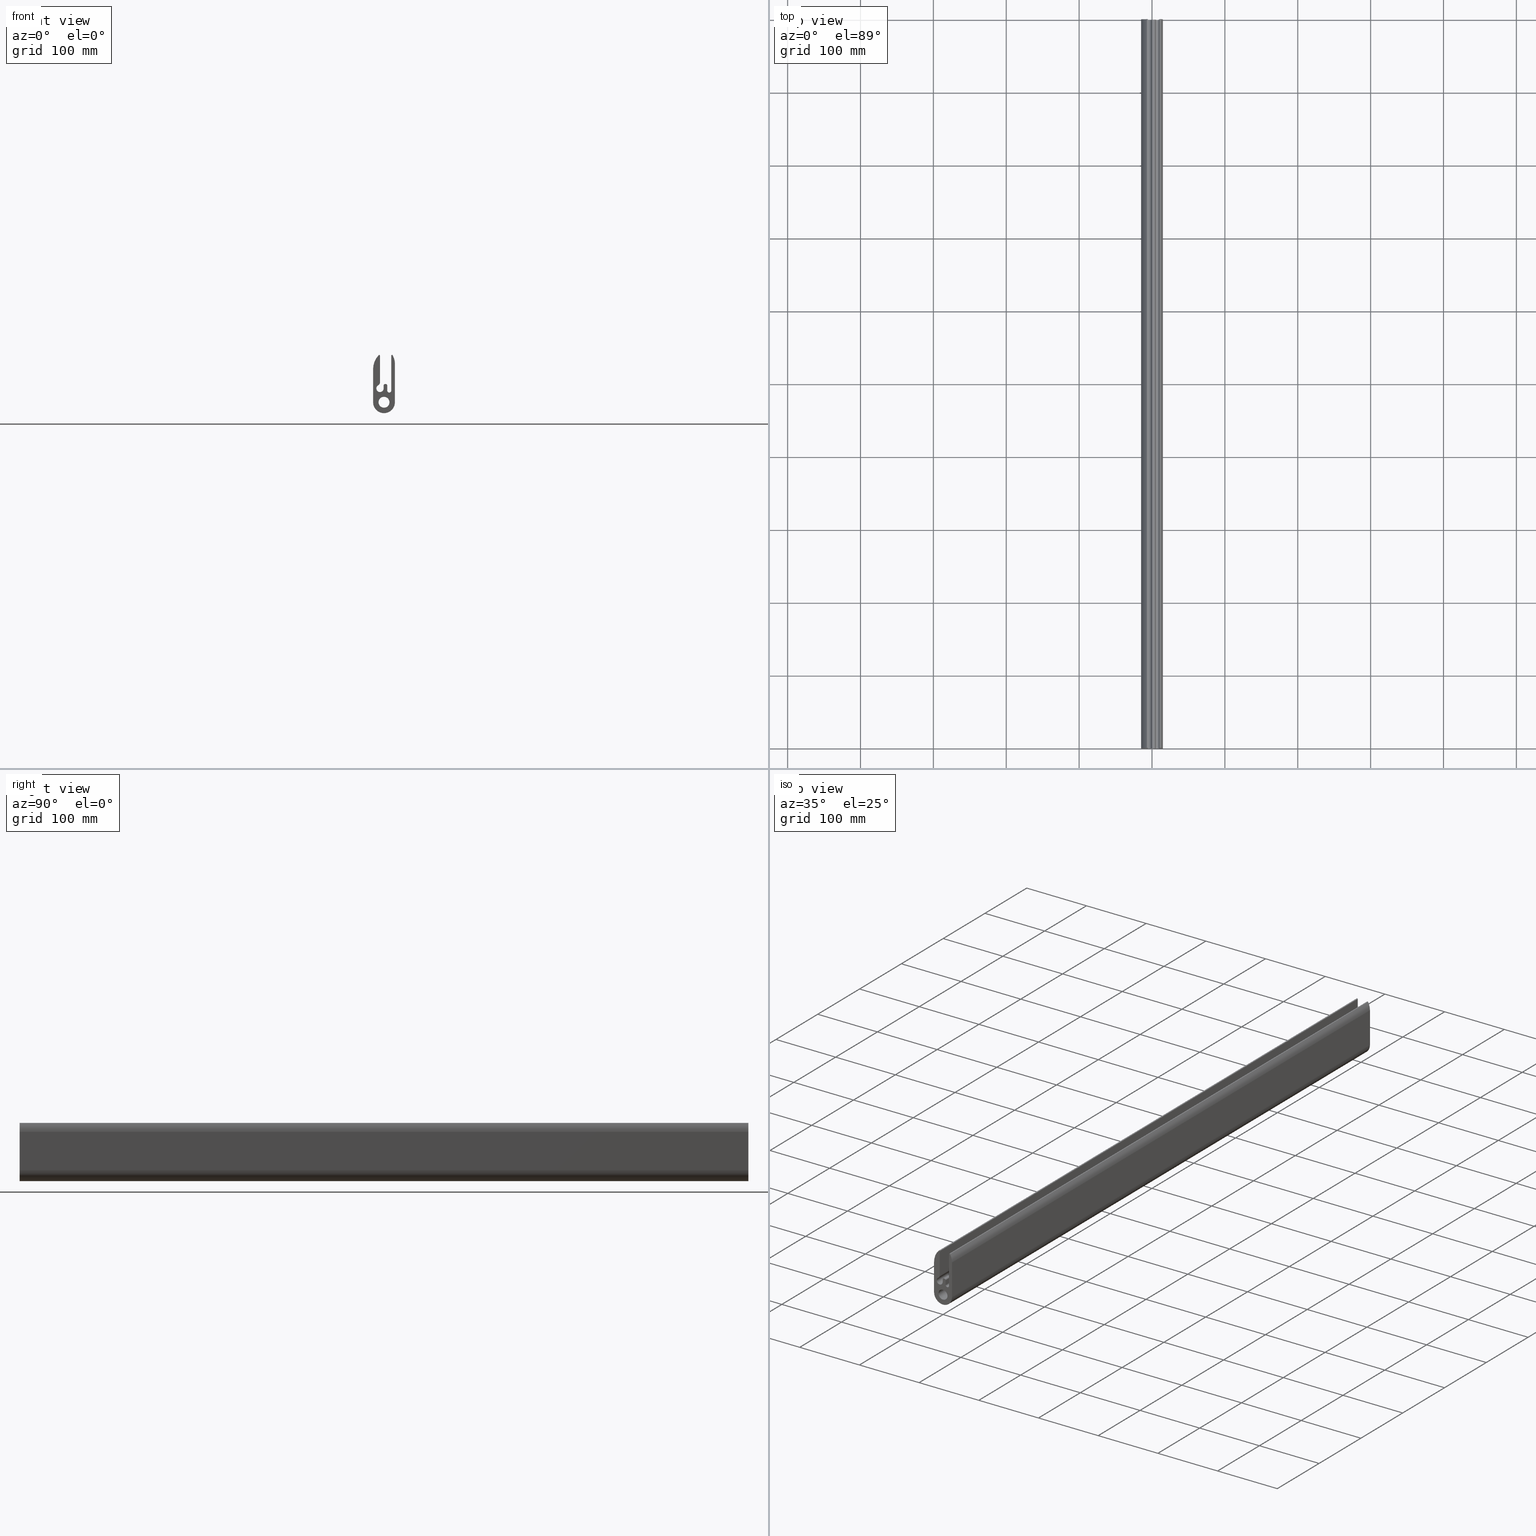
[diagram: canonical four-view strip — front | top / right | iso, engineering-drawing reading convention]
A machine part, canonical four-view strip (front | top / right | iso — engineering-drawing reading convention). The complete STEP part file that produces these views, byte-faithful:
ISO-10303-21;
HEADER;
/* Generated by software containing ST-Developer
 * from STEP Tools, Inc. (www.steptools.com) 
 */

FILE_DESCRIPTION(
/* description */ ('Translator using VaultInventorServer'),
/* implementation_level */ '2;1');

FILE_NAME(
/* name */ 
'C:\\DIERRE19\\Designs\\DIERRE\\PR\\CR\\0000000_0005000\\BPRCR0000029_
A.stp',
/* time_stamp */ '2021-02-10T14:11:45+01:00',
/* author */ ('Tecnico5'),
/* organization */ (''),
/* preprocessor_version */ 'ST-DEVELOPER v17.2',
/* originating_system */ 'Autodesk Inventor 2019',
/* authorisation */ '');

FILE_SCHEMA (('AUTOMOTIVE_DESIGN { 1 0 10303 214 3 1 1 }'));
ENDSEC;

DATA;
#10=MECHANICAL_DESIGN_GEOMETRIC_PRESENTATION_REPRESENTATION('',(#13),#677);
#11=SHAPE_REPRESENTATION_RELATIONSHIP('SRR','None',#684,#12);
#12=ADVANCED_BREP_SHAPE_REPRESENTATION('',(#14),#676);
#13=STYLED_ITEM('',(#693),#14);
#14=MANIFOLD_SOLID_BREP('Solido2',#383);
#15=FACE_BOUND('',#65,.T.);
#16=FACE_BOUND('',#67,.T.);
#17=PLANE('',#412);
#18=PLANE('',#419);
#19=PLANE('',#423);
#20=PLANE('',#430);
#21=PLANE('',#434);
#22=PLANE('',#438);
#23=PLANE('',#442);
#24=PLANE('',#443);
#25=PLANE('',#444);
#26=FACE_OUTER_BOUND('',#46,.T.);
#27=FACE_OUTER_BOUND('',#47,.T.);
#28=FACE_OUTER_BOUND('',#48,.T.);
#29=FACE_OUTER_BOUND('',#49,.T.);
#30=FACE_OUTER_BOUND('',#50,.T.);
#31=FACE_OUTER_BOUND('',#51,.T.);
#32=FACE_OUTER_BOUND('',#52,.T.);
#33=FACE_OUTER_BOUND('',#53,.T.);
#34=FACE_OUTER_BOUND('',#54,.T.);
#35=FACE_OUTER_BOUND('',#55,.T.);
#36=FACE_OUTER_BOUND('',#56,.T.);
#37=FACE_OUTER_BOUND('',#57,.T.);
#38=FACE_OUTER_BOUND('',#58,.T.);
#39=FACE_OUTER_BOUND('',#59,.T.);
#40=FACE_OUTER_BOUND('',#60,.T.);
#41=FACE_OUTER_BOUND('',#61,.T.);
#42=FACE_OUTER_BOUND('',#62,.T.);
#43=FACE_OUTER_BOUND('',#63,.T.);
#44=FACE_OUTER_BOUND('',#64,.T.);
#45=FACE_OUTER_BOUND('',#66,.T.);
#46=EDGE_LOOP('',(#244,#245,#246,#247));
#47=EDGE_LOOP('',(#248,#249,#250,#251));
#48=EDGE_LOOP('',(#252,#253,#254,#255));
#49=EDGE_LOOP('',(#256,#257,#258,#259));
#50=EDGE_LOOP('',(#260,#261,#262,#263));
#51=EDGE_LOOP('',(#264,#265,#266,#267));
#52=EDGE_LOOP('',(#268,#269,#270,#271));
#53=EDGE_LOOP('',(#272,#273,#274,#275));
#54=EDGE_LOOP('',(#276,#277,#278,#279));
#55=EDGE_LOOP('',(#280,#281,#282,#283));
#56=EDGE_LOOP('',(#284,#285,#286,#287));
#57=EDGE_LOOP('',(#288,#289,#290,#291));
#58=EDGE_LOOP('',(#292,#293,#294,#295));
#59=EDGE_LOOP('',(#296,#297,#298,#299));
#60=EDGE_LOOP('',(#300,#301,#302,#303));
#61=EDGE_LOOP('',(#304,#305,#306,#307));
#62=EDGE_LOOP('',(#308,#309,#310,#311));
#63=EDGE_LOOP('',(#312,#313,#314,#315));
#64=EDGE_LOOP('',(#316,#317,#318,#319,#320,#321,#322,#323,#324,#325,#326,
#327,#328,#329,#330,#331,#332));
#65=EDGE_LOOP('',(#333));
#66=EDGE_LOOP('',(#334,#335,#336,#337,#338,#339,#340,#341,#342,#343,#344,
#345,#346,#347,#348,#349,#350));
#67=EDGE_LOOP('',(#351));
#68=LINE('',#568,#100);
#69=LINE('',#575,#101);
#70=LINE('',#578,#102);
#71=LINE('',#584,#103);
#72=LINE('',#587,#104);
#73=LINE('',#589,#105);
#74=LINE('',#590,#106);
#75=LINE('',#596,#107);
#76=LINE('',#602,#108);
#77=LINE('',#605,#109);
#78=LINE('',#607,#110);
#79=LINE('',#608,#111);
#80=LINE('',#614,#112);
#81=LINE('',#617,#113);
#82=LINE('',#619,#114);
#83=LINE('',#620,#115);
#84=LINE('',#626,#116);
#85=LINE('',#632,#117);
#86=LINE('',#635,#118);
#87=LINE('',#637,#119);
#88=LINE('',#638,#120);
#89=LINE('',#644,#121);
#90=LINE('',#647,#122);
#91=LINE('',#649,#123);
#92=LINE('',#650,#124);
#93=LINE('',#656,#125);
#94=LINE('',#659,#126);
#95=LINE('',#661,#127);
#96=LINE('',#662,#128);
#97=LINE('',#668,#129);
#98=LINE('',#670,#130);
#99=LINE('',#671,#131);
#100=VECTOR('',#451,7.5);
#101=VECTOR('',#458,10.);
#102=VECTOR('',#461,10.);
#103=VECTOR('',#468,10.);
#104=VECTOR('',#471,10.);
#105=VECTOR('',#472,10.);
#106=VECTOR('',#473,10.);
#107=VECTOR('',#480,10.);
#108=VECTOR('',#487,10.);
#109=VECTOR('',#490,10.);
#110=VECTOR('',#491,10.);
#111=VECTOR('',#492,10.);
#112=VECTOR('',#499,10.);
#113=VECTOR('',#502,10.);
#114=VECTOR('',#503,10.);
#115=VECTOR('',#504,10.);
#116=VECTOR('',#511,10.);
#117=VECTOR('',#518,10.);
#118=VECTOR('',#521,10.);
#119=VECTOR('',#522,10.);
#120=VECTOR('',#523,10.);
#121=VECTOR('',#530,10.);
#122=VECTOR('',#533,10.);
#123=VECTOR('',#534,10.);
#124=VECTOR('',#535,10.);
#125=VECTOR('',#542,10.);
#126=VECTOR('',#545,10.);
#127=VECTOR('',#546,10.);
#128=VECTOR('',#547,10.);
#129=VECTOR('',#554,10.);
#130=VECTOR('',#557,10.);
#131=VECTOR('',#558,10.);
#132=CIRCLE('',#404,7.5);
#133=CIRCLE('',#405,7.5);
#134=CIRCLE('',#407,5.);
#135=CIRCLE('',#408,5.);
#136=CIRCLE('',#410,4.);
#137=CIRCLE('',#411,4.);
#138=CIRCLE('',#414,1.);
#139=CIRCLE('',#415,1.);
#140=CIRCLE('',#417,28.);
#141=CIRCLE('',#418,28.);
#142=CIRCLE('',#421,15.);
#143=CIRCLE('',#422,15.);
#144=CIRCLE('',#425,24.);
#145=CIRCLE('',#426,24.);
#146=CIRCLE('',#428,1.);
#147=CIRCLE('',#429,1.);
#148=CIRCLE('',#432,2.75);
#149=CIRCLE('',#433,2.75);
#150=CIRCLE('',#436,2.);
#151=CIRCLE('',#437,2.);
#152=CIRCLE('',#440,2.);
#153=CIRCLE('',#441,2.);
#154=VERTEX_POINT('',#565);
#155=VERTEX_POINT('',#567);
#156=VERTEX_POINT('',#571);
#157=VERTEX_POINT('',#572);
#158=VERTEX_POINT('',#574);
#159=VERTEX_POINT('',#576);
#160=VERTEX_POINT('',#580);
#161=VERTEX_POINT('',#582);
#162=VERTEX_POINT('',#586);
#163=VERTEX_POINT('',#588);
#164=VERTEX_POINT('',#592);
#165=VERTEX_POINT('',#594);
#166=VERTEX_POINT('',#598);
#167=VERTEX_POINT('',#600);
#168=VERTEX_POINT('',#604);
#169=VERTEX_POINT('',#606);
#170=VERTEX_POINT('',#610);
#171=VERTEX_POINT('',#612);
#172=VERTEX_POINT('',#616);
#173=VERTEX_POINT('',#618);
#174=VERTEX_POINT('',#622);
#175=VERTEX_POINT('',#624);
#176=VERTEX_POINT('',#628);
#177=VERTEX_POINT('',#630);
#178=VERTEX_POINT('',#634);
#179=VERTEX_POINT('',#636);
#180=VERTEX_POINT('',#640);
#181=VERTEX_POINT('',#642);
#182=VERTEX_POINT('',#646);
#183=VERTEX_POINT('',#648);
#184=VERTEX_POINT('',#652);
#185=VERTEX_POINT('',#654);
#186=VERTEX_POINT('',#658);
#187=VERTEX_POINT('',#660);
#188=VERTEX_POINT('',#664);
#189=VERTEX_POINT('',#666);
#190=EDGE_CURVE('',#154,#154,#132,.T.);
#191=EDGE_CURVE('',#154,#155,#68,.T.);
#192=EDGE_CURVE('',#155,#155,#133,.T.);
#193=EDGE_CURVE('',#156,#157,#134,.T.);
#194=EDGE_CURVE('',#157,#158,#69,.T.);
#195=EDGE_CURVE('',#159,#158,#135,.T.);
#196=EDGE_CURVE('',#156,#159,#70,.T.);
#197=EDGE_CURVE('',#160,#156,#136,.T.);
#198=EDGE_CURVE('',#161,#159,#137,.T.);
#199=EDGE_CURVE('',#160,#161,#71,.T.);
#200=EDGE_CURVE('',#162,#160,#72,.T.);
#201=EDGE_CURVE('',#163,#161,#73,.T.);
#202=EDGE_CURVE('',#162,#163,#74,.T.);
#203=EDGE_CURVE('',#164,#162,#138,.T.);
#204=EDGE_CURVE('',#165,#163,#139,.T.);
#205=EDGE_CURVE('',#164,#165,#75,.T.);
#206=EDGE_CURVE('',#166,#164,#140,.T.);
#207=EDGE_CURVE('',#167,#165,#141,.T.);
#208=EDGE_CURVE('',#166,#167,#76,.T.);
#209=EDGE_CURVE('',#168,#166,#77,.T.);
#210=EDGE_CURVE('',#169,#167,#78,.T.);
#211=EDGE_CURVE('',#168,#169,#79,.T.);
#212=EDGE_CURVE('',#170,#168,#142,.T.);
#213=EDGE_CURVE('',#171,#169,#143,.T.);
#214=EDGE_CURVE('',#170,#171,#80,.T.);
#215=EDGE_CURVE('',#172,#170,#81,.T.);
#216=EDGE_CURVE('',#173,#171,#82,.T.);
#217=EDGE_CURVE('',#172,#173,#83,.T.);
#218=EDGE_CURVE('',#174,#172,#144,.T.);
#219=EDGE_CURVE('',#175,#173,#145,.T.);
#220=EDGE_CURVE('',#174,#175,#84,.T.);
#221=EDGE_CURVE('',#176,#174,#146,.T.);
#222=EDGE_CURVE('',#177,#175,#147,.T.);
#223=EDGE_CURVE('',#176,#177,#85,.T.);
#224=EDGE_CURVE('',#178,#176,#86,.T.);
#225=EDGE_CURVE('',#179,#177,#87,.T.);
#226=EDGE_CURVE('',#178,#179,#88,.T.);
#227=EDGE_CURVE('',#180,#178,#148,.T.);
#228=EDGE_CURVE('',#181,#179,#149,.T.);
#229=EDGE_CURVE('',#180,#181,#89,.T.);
#230=EDGE_CURVE('',#182,#180,#90,.T.);
#231=EDGE_CURVE('',#183,#181,#91,.T.);
#232=EDGE_CURVE('',#182,#183,#92,.T.);
#233=EDGE_CURVE('',#184,#182,#150,.T.);
#234=EDGE_CURVE('',#185,#183,#151,.T.);
#235=EDGE_CURVE('',#184,#185,#93,.T.);
#236=EDGE_CURVE('',#186,#184,#94,.T.);
#237=EDGE_CURVE('',#187,#185,#95,.T.);
#238=EDGE_CURVE('',#186,#187,#96,.T.);
#239=EDGE_CURVE('',#188,#186,#152,.T.);
#240=EDGE_CURVE('',#189,#187,#153,.T.);
#241=EDGE_CURVE('',#188,#189,#97,.T.);
#242=EDGE_CURVE('',#157,#188,#98,.T.);
#243=EDGE_CURVE('',#158,#189,#99,.T.);
#244=ORIENTED_EDGE('',*,*,#190,.F.);
#245=ORIENTED_EDGE('',*,*,#191,.T.);
#246=ORIENTED_EDGE('',*,*,#192,.F.);
#247=ORIENTED_EDGE('',*,*,#191,.F.);
#248=ORIENTED_EDGE('',*,*,#193,.T.);
#249=ORIENTED_EDGE('',*,*,#194,.T.);
#250=ORIENTED_EDGE('',*,*,#195,.F.);
#251=ORIENTED_EDGE('',*,*,#196,.F.);
#252=ORIENTED_EDGE('',*,*,#197,.T.);
#253=ORIENTED_EDGE('',*,*,#196,.T.);
#254=ORIENTED_EDGE('',*,*,#198,.F.);
#255=ORIENTED_EDGE('',*,*,#199,.F.);
#256=ORIENTED_EDGE('',*,*,#200,.T.);
#257=ORIENTED_EDGE('',*,*,#199,.T.);
#258=ORIENTED_EDGE('',*,*,#201,.F.);
#259=ORIENTED_EDGE('',*,*,#202,.F.);
#260=ORIENTED_EDGE('',*,*,#203,.T.);
#261=ORIENTED_EDGE('',*,*,#202,.T.);
#262=ORIENTED_EDGE('',*,*,#204,.F.);
#263=ORIENTED_EDGE('',*,*,#205,.F.);
#264=ORIENTED_EDGE('',*,*,#206,.T.);
#265=ORIENTED_EDGE('',*,*,#205,.T.);
#266=ORIENTED_EDGE('',*,*,#207,.F.);
#267=ORIENTED_EDGE('',*,*,#208,.F.);
#268=ORIENTED_EDGE('',*,*,#209,.T.);
#269=ORIENTED_EDGE('',*,*,#208,.T.);
#270=ORIENTED_EDGE('',*,*,#210,.F.);
#271=ORIENTED_EDGE('',*,*,#211,.F.);
#272=ORIENTED_EDGE('',*,*,#212,.T.);
#273=ORIENTED_EDGE('',*,*,#211,.T.);
#274=ORIENTED_EDGE('',*,*,#213,.F.);
#275=ORIENTED_EDGE('',*,*,#214,.F.);
#276=ORIENTED_EDGE('',*,*,#215,.T.);
#277=ORIENTED_EDGE('',*,*,#214,.T.);
#278=ORIENTED_EDGE('',*,*,#216,.F.);
#279=ORIENTED_EDGE('',*,*,#217,.F.);
#280=ORIENTED_EDGE('',*,*,#218,.T.);
#281=ORIENTED_EDGE('',*,*,#217,.T.);
#282=ORIENTED_EDGE('',*,*,#219,.F.);
#283=ORIENTED_EDGE('',*,*,#220,.F.);
#284=ORIENTED_EDGE('',*,*,#221,.T.);
#285=ORIENTED_EDGE('',*,*,#220,.T.);
#286=ORIENTED_EDGE('',*,*,#222,.F.);
#287=ORIENTED_EDGE('',*,*,#223,.F.);
#288=ORIENTED_EDGE('',*,*,#224,.T.);
#289=ORIENTED_EDGE('',*,*,#223,.T.);
#290=ORIENTED_EDGE('',*,*,#225,.F.);
#291=ORIENTED_EDGE('',*,*,#226,.F.);
#292=ORIENTED_EDGE('',*,*,#227,.T.);
#293=ORIENTED_EDGE('',*,*,#226,.T.);
#294=ORIENTED_EDGE('',*,*,#228,.F.);
#295=ORIENTED_EDGE('',*,*,#229,.F.);
#296=ORIENTED_EDGE('',*,*,#230,.T.);
#297=ORIENTED_EDGE('',*,*,#229,.T.);
#298=ORIENTED_EDGE('',*,*,#231,.F.);
#299=ORIENTED_EDGE('',*,*,#232,.F.);
#300=ORIENTED_EDGE('',*,*,#233,.T.);
#301=ORIENTED_EDGE('',*,*,#232,.T.);
#302=ORIENTED_EDGE('',*,*,#234,.F.);
#303=ORIENTED_EDGE('',*,*,#235,.F.);
#304=ORIENTED_EDGE('',*,*,#236,.T.);
#305=ORIENTED_EDGE('',*,*,#235,.T.);
#306=ORIENTED_EDGE('',*,*,#237,.F.);
#307=ORIENTED_EDGE('',*,*,#238,.F.);
#308=ORIENTED_EDGE('',*,*,#239,.T.);
#309=ORIENTED_EDGE('',*,*,#238,.T.);
#310=ORIENTED_EDGE('',*,*,#240,.F.);
#311=ORIENTED_EDGE('',*,*,#241,.F.);
#312=ORIENTED_EDGE('',*,*,#242,.T.);
#313=ORIENTED_EDGE('',*,*,#241,.T.);
#314=ORIENTED_EDGE('',*,*,#243,.F.);
#315=ORIENTED_EDGE('',*,*,#194,.F.);
#316=ORIENTED_EDGE('',*,*,#243,.T.);
#317=ORIENTED_EDGE('',*,*,#240,.T.);
#318=ORIENTED_EDGE('',*,*,#237,.T.);
#319=ORIENTED_EDGE('',*,*,#234,.T.);
#320=ORIENTED_EDGE('',*,*,#231,.T.);
#321=ORIENTED_EDGE('',*,*,#228,.T.);
#322=ORIENTED_EDGE('',*,*,#225,.T.);
#323=ORIENTED_EDGE('',*,*,#222,.T.);
#324=ORIENTED_EDGE('',*,*,#219,.T.);
#325=ORIENTED_EDGE('',*,*,#216,.T.);
#326=ORIENTED_EDGE('',*,*,#213,.T.);
#327=ORIENTED_EDGE('',*,*,#210,.T.);
#328=ORIENTED_EDGE('',*,*,#207,.T.);
#329=ORIENTED_EDGE('',*,*,#204,.T.);
#330=ORIENTED_EDGE('',*,*,#201,.T.);
#331=ORIENTED_EDGE('',*,*,#198,.T.);
#332=ORIENTED_EDGE('',*,*,#195,.T.);
#333=ORIENTED_EDGE('',*,*,#192,.T.);
#334=ORIENTED_EDGE('',*,*,#242,.F.);
#335=ORIENTED_EDGE('',*,*,#193,.F.);
#336=ORIENTED_EDGE('',*,*,#197,.F.);
#337=ORIENTED_EDGE('',*,*,#200,.F.);
#338=ORIENTED_EDGE('',*,*,#203,.F.);
#339=ORIENTED_EDGE('',*,*,#206,.F.);
#340=ORIENTED_EDGE('',*,*,#209,.F.);
#341=ORIENTED_EDGE('',*,*,#212,.F.);
#342=ORIENTED_EDGE('',*,*,#215,.F.);
#343=ORIENTED_EDGE('',*,*,#218,.F.);
#344=ORIENTED_EDGE('',*,*,#221,.F.);
#345=ORIENTED_EDGE('',*,*,#224,.F.);
#346=ORIENTED_EDGE('',*,*,#227,.F.);
#347=ORIENTED_EDGE('',*,*,#230,.F.);
#348=ORIENTED_EDGE('',*,*,#233,.F.);
#349=ORIENTED_EDGE('',*,*,#236,.F.);
#350=ORIENTED_EDGE('',*,*,#239,.F.);
#351=ORIENTED_EDGE('',*,*,#190,.T.);
#352=CYLINDRICAL_SURFACE('',#403,7.5);
#353=CYLINDRICAL_SURFACE('',#406,5.);
#354=CYLINDRICAL_SURFACE('',#409,4.);
#355=CYLINDRICAL_SURFACE('',#413,1.);
#356=CYLINDRICAL_SURFACE('',#416,28.);
#357=CYLINDRICAL_SURFACE('',#420,15.);
#358=CYLINDRICAL_SURFACE('',#424,24.);
#359=CYLINDRICAL_SURFACE('',#427,1.);
#360=CYLINDRICAL_SURFACE('',#431,2.75);
#361=CYLINDRICAL_SURFACE('',#435,2.);
#362=CYLINDRICAL_SURFACE('',#439,2.);
#363=ADVANCED_FACE('',(#26),#352,.F.);
#364=ADVANCED_FACE('',(#27),#353,.F.);
#365=ADVANCED_FACE('',(#28),#354,.T.);
#366=ADVANCED_FACE('',(#29),#17,.T.);
#367=ADVANCED_FACE('',(#30),#355,.T.);
#368=ADVANCED_FACE('',(#31),#356,.T.);
#369=ADVANCED_FACE('',(#32),#18,.T.);
#370=ADVANCED_FACE('',(#33),#357,.T.);
#371=ADVANCED_FACE('',(#34),#19,.T.);
#372=ADVANCED_FACE('',(#35),#358,.T.);
#373=ADVANCED_FACE('',(#36),#359,.T.);
#374=ADVANCED_FACE('',(#37),#20,.T.);
#375=ADVANCED_FACE('',(#38),#360,.F.);
#376=ADVANCED_FACE('',(#39),#21,.T.);
#377=ADVANCED_FACE('',(#40),#361,.T.);
#378=ADVANCED_FACE('',(#41),#22,.T.);
#379=ADVANCED_FACE('',(#42),#362,.T.);
#380=ADVANCED_FACE('',(#43),#23,.T.);
#381=ADVANCED_FACE('',(#44,#15),#24,.F.);
#382=ADVANCED_FACE('',(#45,#16),#25,.T.);
#383=CLOSED_SHELL('',(#363,#364,#365,#366,#367,#368,#369,#370,#371,#372,
#373,#374,#375,#376,#377,#378,#379,#380,#381,#382));
#384=DERIVED_UNIT_ELEMENT(#386,1.);
#385=DERIVED_UNIT_ELEMENT(#679,3.);
#386=(
MASS_UNIT()
NAMED_UNIT(*)
SI_UNIT($,.GRAM.)
);
#387=DERIVED_UNIT((#384,#385));
#388=MEASURE_REPRESENTATION_ITEM('density measure',
POSITIVE_RATIO_MEASURE(2.7),#387);
#389=PROPERTY_DEFINITION_REPRESENTATION(#394,#391);
#390=PROPERTY_DEFINITION_REPRESENTATION(#395,#392);
#391=REPRESENTATION('material name',(#393),#676);
#392=REPRESENTATION('density',(#388),#676);
#393=DESCRIPTIVE_REPRESENTATION_ITEM('Alluminio 6060','Alluminio 6060');
#394=PROPERTY_DEFINITION('material property','material name',#686);
#395=PROPERTY_DEFINITION('material property','density of part',#686);
#396=DATE_TIME_ROLE('creation_date');
#397=APPLIED_DATE_AND_TIME_ASSIGNMENT(#398,#396,(#686));
#398=DATE_AND_TIME(#399,#400);
#399=CALENDAR_DATE(2020,22,10);
#400=LOCAL_TIME(7,22,41.,#401);
#401=COORDINATED_UNIVERSAL_TIME_OFFSET(0,0,.BEHIND.);
#402=AXIS2_PLACEMENT_3D('placement',#563,#445,#446);
#403=AXIS2_PLACEMENT_3D('',#564,#447,#448);
#404=AXIS2_PLACEMENT_3D('',#566,#449,#450);
#405=AXIS2_PLACEMENT_3D('',#569,#452,#453);
#406=AXIS2_PLACEMENT_3D('',#570,#454,#455);
#407=AXIS2_PLACEMENT_3D('',#573,#456,#457);
#408=AXIS2_PLACEMENT_3D('',#577,#459,#460);
#409=AXIS2_PLACEMENT_3D('',#579,#462,#463);
#410=AXIS2_PLACEMENT_3D('',#581,#464,#465);
#411=AXIS2_PLACEMENT_3D('',#583,#466,#467);
#412=AXIS2_PLACEMENT_3D('',#585,#469,#470);
#413=AXIS2_PLACEMENT_3D('',#591,#474,#475);
#414=AXIS2_PLACEMENT_3D('',#593,#476,#477);
#415=AXIS2_PLACEMENT_3D('',#595,#478,#479);
#416=AXIS2_PLACEMENT_3D('',#597,#481,#482);
#417=AXIS2_PLACEMENT_3D('',#599,#483,#484);
#418=AXIS2_PLACEMENT_3D('',#601,#485,#486);
#419=AXIS2_PLACEMENT_3D('',#603,#488,#489);
#420=AXIS2_PLACEMENT_3D('',#609,#493,#494);
#421=AXIS2_PLACEMENT_3D('',#611,#495,#496);
#422=AXIS2_PLACEMENT_3D('',#613,#497,#498);
#423=AXIS2_PLACEMENT_3D('',#615,#500,#501);
#424=AXIS2_PLACEMENT_3D('',#621,#505,#506);
#425=AXIS2_PLACEMENT_3D('',#623,#507,#508);
#426=AXIS2_PLACEMENT_3D('',#625,#509,#510);
#427=AXIS2_PLACEMENT_3D('',#627,#512,#513);
#428=AXIS2_PLACEMENT_3D('',#629,#514,#515);
#429=AXIS2_PLACEMENT_3D('',#631,#516,#517);
#430=AXIS2_PLACEMENT_3D('',#633,#519,#520);
#431=AXIS2_PLACEMENT_3D('',#639,#524,#525);
#432=AXIS2_PLACEMENT_3D('',#641,#526,#527);
#433=AXIS2_PLACEMENT_3D('',#643,#528,#529);
#434=AXIS2_PLACEMENT_3D('',#645,#531,#532);
#435=AXIS2_PLACEMENT_3D('',#651,#536,#537);
#436=AXIS2_PLACEMENT_3D('',#653,#538,#539);
#437=AXIS2_PLACEMENT_3D('',#655,#540,#541);
#438=AXIS2_PLACEMENT_3D('',#657,#543,#544);
#439=AXIS2_PLACEMENT_3D('',#663,#548,#549);
#440=AXIS2_PLACEMENT_3D('',#665,#550,#551);
#441=AXIS2_PLACEMENT_3D('',#667,#552,#553);
#442=AXIS2_PLACEMENT_3D('',#669,#555,#556);
#443=AXIS2_PLACEMENT_3D('',#672,#559,#560);
#444=AXIS2_PLACEMENT_3D('',#673,#561,#562);
#445=DIRECTION('axis',(0.,0.,1.));
#446=DIRECTION('refdir',(1.,0.,0.));
#447=DIRECTION('center_axis',(0.,1.,0.));
#448=DIRECTION('ref_axis',(1.,0.,0.));
#449=DIRECTION('center_axis',(0.,1.,0.));
#450=DIRECTION('ref_axis',(1.,0.,0.));
#451=DIRECTION('',(0.,1.,0.));
#452=DIRECTION('center_axis',(0.,-1.,0.));
#453=DIRECTION('ref_axis',(1.,0.,0.));
#454=DIRECTION('center_axis',(0.,1.,0.));
#455=DIRECTION('ref_axis',(-1.,0.,4.44089209850063E-16));
#456=DIRECTION('center_axis',(0.,-1.,0.));
#457=DIRECTION('ref_axis',(-1.,0.,4.44089209850063E-16));
#458=DIRECTION('',(0.,1.,0.));
#459=DIRECTION('center_axis',(0.,-1.,0.));
#460=DIRECTION('ref_axis',(-1.,0.,4.44089209850063E-16));
#461=DIRECTION('',(0.,1.,0.));
#462=DIRECTION('center_axis',(0.,1.,0.));
#463=DIRECTION('ref_axis',(1.,0.,0.));
#464=DIRECTION('center_axis',(0.,1.,0.));
#465=DIRECTION('ref_axis',(1.,0.,0.));
#466=DIRECTION('center_axis',(0.,1.,0.));
#467=DIRECTION('ref_axis',(1.,0.,0.));
#468=DIRECTION('',(0.,1.,0.));
#469=DIRECTION('center_axis',(1.,0.,0.));
#470=DIRECTION('ref_axis',(0.,0.,-1.));
#471=DIRECTION('',(0.,0.,-1.));
#472=DIRECTION('',(0.,0.,-1.));
#473=DIRECTION('',(0.,1.,0.));
#474=DIRECTION('center_axis',(0.,1.,0.));
#475=DIRECTION('ref_axis',(-0.72222222222222,0.,0.691661088777154));
#476=DIRECTION('center_axis',(0.,1.,0.));
#477=DIRECTION('ref_axis',(-0.72222222222222,0.,0.691661088777154));
#478=DIRECTION('center_axis',(0.,1.,0.));
#479=DIRECTION('ref_axis',(-0.72222222222222,0.,0.691661088777154));
#480=DIRECTION('',(0.,1.,0.));
#481=DIRECTION('center_axis',(0.,1.,0.));
#482=DIRECTION('ref_axis',(-1.,0.,0.));
#483=DIRECTION('center_axis',(0.,1.,0.));
#484=DIRECTION('ref_axis',(-1.,0.,0.));
#485=DIRECTION('center_axis',(0.,1.,0.));
#486=DIRECTION('ref_axis',(-1.,0.,0.));
#487=DIRECTION('',(0.,1.,0.));
#488=DIRECTION('center_axis',(-1.,0.,9.79785403780883E-17));
#489=DIRECTION('ref_axis',(9.79785403780883E-17,0.,1.));
#490=DIRECTION('',(9.79785403780883E-17,0.,1.));
#491=DIRECTION('',(9.79785403780883E-17,0.,1.));
#492=DIRECTION('',(0.,1.,0.));
#493=DIRECTION('center_axis',(0.,1.,0.));
#494=DIRECTION('ref_axis',(1.,0.,-3.67394039744206E-16));
#495=DIRECTION('center_axis',(0.,1.,0.));
#496=DIRECTION('ref_axis',(1.,0.,-3.67394039744206E-16));
#497=DIRECTION('center_axis',(0.,1.,0.));
#498=DIRECTION('ref_axis',(1.,0.,-3.67394039744206E-16));
#499=DIRECTION('',(0.,1.,0.));
#500=DIRECTION('center_axis',(1.,0.,-2.53079858360968E-16));
#501=DIRECTION('ref_axis',(-2.53079858360968E-16,0.,-1.));
#502=DIRECTION('',(-2.53079858360968E-16,0.,-1.));
#503=DIRECTION('',(-2.53079858360968E-16,0.,-1.));
#504=DIRECTION('',(0.,1.,0.));
#505=DIRECTION('center_axis',(0.,1.,0.));
#506=DIRECTION('ref_axis',(0.869565217391304,0.,0.49381811702611));
#507=DIRECTION('center_axis',(0.,1.,0.));
#508=DIRECTION('ref_axis',(0.869565217391304,0.,0.49381811702611));
#509=DIRECTION('center_axis',(0.,1.,0.));
#510=DIRECTION('ref_axis',(0.869565217391304,0.,0.49381811702611));
#511=DIRECTION('',(0.,1.,0.));
#512=DIRECTION('center_axis',(0.,1.,0.));
#513=DIRECTION('ref_axis',(-1.,0.,0.));
#514=DIRECTION('center_axis',(0.,1.,0.));
#515=DIRECTION('ref_axis',(-1.,0.,0.));
#516=DIRECTION('center_axis',(0.,1.,0.));
#517=DIRECTION('ref_axis',(-1.,0.,0.));
#518=DIRECTION('',(0.,1.,0.));
#519=DIRECTION('center_axis',(-1.,0.,4.16333634234434E-16));
#520=DIRECTION('ref_axis',(4.16333634234434E-16,0.,1.));
#521=DIRECTION('',(4.16333634234434E-16,0.,1.));
#522=DIRECTION('',(4.16333634234434E-16,0.,1.));
#523=DIRECTION('',(0.,1.,0.));
#524=DIRECTION('center_axis',(0.,1.,0.));
#525=DIRECTION('ref_axis',(-1.,0.,0.));
#526=DIRECTION('center_axis',(0.,-1.,0.));
#527=DIRECTION('ref_axis',(-1.,0.,0.));
#528=DIRECTION('center_axis',(0.,-1.,0.));
#529=DIRECTION('ref_axis',(-1.,0.,0.));
#530=DIRECTION('',(0.,1.,0.));
#531=DIRECTION('center_axis',(1.,0.,-4.75809867696496E-16));
#532=DIRECTION('ref_axis',(-4.75809867696496E-16,0.,-1.));
#533=DIRECTION('',(-4.75809867696496E-16,0.,-1.));
#534=DIRECTION('',(-4.75809867696496E-16,0.,-1.));
#535=DIRECTION('',(0.,1.,0.));
#536=DIRECTION('center_axis',(0.,1.,0.));
#537=DIRECTION('ref_axis',(0.,0.,1.));
#538=DIRECTION('center_axis',(0.,1.,0.));
#539=DIRECTION('ref_axis',(0.,0.,1.));
#540=DIRECTION('center_axis',(0.,1.,0.));
#541=DIRECTION('ref_axis',(0.,0.,1.));
#542=DIRECTION('',(0.,1.,0.));
#543=DIRECTION('center_axis',(8.88178419700126E-15,0.,1.));
#544=DIRECTION('ref_axis',(1.,0.,-8.88178419700126E-15));
#545=DIRECTION('',(1.,0.,-8.88178419700126E-15));
#546=DIRECTION('',(1.,0.,-8.88178419700126E-15));
#547=DIRECTION('',(0.,1.,0.));
#548=DIRECTION('center_axis',(0.,1.,0.));
#549=DIRECTION('ref_axis',(-1.,0.,0.));
#550=DIRECTION('center_axis',(0.,1.,0.));
#551=DIRECTION('ref_axis',(-1.,0.,0.));
#552=DIRECTION('center_axis',(0.,1.,0.));
#553=DIRECTION('ref_axis',(-1.,0.,0.));
#554=DIRECTION('',(0.,1.,0.));
#555=DIRECTION('center_axis',(-1.,0.,6.93889390390722E-16));
#556=DIRECTION('ref_axis',(6.93889390390722E-16,0.,1.));
#557=DIRECTION('',(6.93889390390722E-16,0.,1.));
#558=DIRECTION('',(6.93889390390722E-16,0.,1.));
#559=DIRECTION('center_axis',(0.,-1.,0.));
#560=DIRECTION('ref_axis',(0.,0.,-1.));
#561=DIRECTION('center_axis',(0.,-1.,0.));
#562=DIRECTION('ref_axis',(0.,0.,-1.));
#563=CARTESIAN_POINT('',(0.,0.,0.));
#564=CARTESIAN_POINT('Origin',(0.,0.,0.));
#565=CARTESIAN_POINT('',(-7.5,0.,9.18485099360515E-16));
#566=CARTESIAN_POINT('Origin',(0.,0.,0.));
#567=CARTESIAN_POINT('',(-7.5,1000.,9.18485099360515E-16));
#568=CARTESIAN_POINT('',(-7.5,0.,9.18485099360515E-16));
#569=CARTESIAN_POINT('Origin',(0.,1000.,0.));
#570=CARTESIAN_POINT('Origin',(-5.5,0.,19.));
#571=CARTESIAN_POINT('',(-7.72222222222222,0.,23.4790320823881));
#572=CARTESIAN_POINT('',(-0.499999999999999,0.,19.));
#573=CARTESIAN_POINT('Origin',(-5.5,0.,19.));
#574=CARTESIAN_POINT('',(-0.499999999999999,1000.,19.));
#575=CARTESIAN_POINT('',(-0.499999999999999,0.,19.));
#576=CARTESIAN_POINT('',(-7.72222222222222,1000.,23.4790320823881));
#577=CARTESIAN_POINT('Origin',(-5.5,1000.,19.));
#578=CARTESIAN_POINT('',(-7.72222222222222,0.,23.4790320823881));
#579=CARTESIAN_POINT('Origin',(-9.5,0.,27.0622577482985));
#580=CARTESIAN_POINT('',(-5.49999999999999,0.,27.0622577482985));
#581=CARTESIAN_POINT('Origin',(-9.5,0.,27.0622577482985));
#582=CARTESIAN_POINT('',(-5.49999999999999,1000.,27.0622577482985));
#583=CARTESIAN_POINT('Origin',(-9.5,1000.,27.0622577482985));
#584=CARTESIAN_POINT('',(-5.49999999999999,0.,27.0622577482985));
#585=CARTESIAN_POINT('Origin',(-5.49999999999999,0.,64.));
#586=CARTESIAN_POINT('',(-5.49999999999999,0.,64.));
#587=CARTESIAN_POINT('',(-5.49999999999999,0.,64.));
#588=CARTESIAN_POINT('',(-5.49999999999999,1000.,64.));
#589=CARTESIAN_POINT('',(-5.49999999999999,1000.,64.));
#590=CARTESIAN_POINT('',(-5.49999999999999,0.,64.));
#591=CARTESIAN_POINT('Origin',(-6.49999999999999,0.,64.));
#592=CARTESIAN_POINT('',(-7.22222222222222,0.,64.6916610887772));
#593=CARTESIAN_POINT('Origin',(-6.49999999999999,0.,64.));
#594=CARTESIAN_POINT('',(-7.22222222222222,1000.,64.6916610887772));
#595=CARTESIAN_POINT('Origin',(-6.49999999999999,1000.,64.));
#596=CARTESIAN_POINT('',(-7.22222222222222,0.,64.6916610887772));
#597=CARTESIAN_POINT('Origin',(13.,0.,45.3251506030169));
#598=CARTESIAN_POINT('',(-15.,0.,45.3251506030169));
#599=CARTESIAN_POINT('Origin',(13.,0.,45.3251506030169));
#600=CARTESIAN_POINT('',(-15.,1000.,45.3251506030169));
#601=CARTESIAN_POINT('Origin',(13.,1000.,45.3251506030169));
#602=CARTESIAN_POINT('',(-15.,0.,45.3251506030169));
#603=CARTESIAN_POINT('Origin',(-15.,0.,3.67394039744206E-15));
#604=CARTESIAN_POINT('',(-15.,0.,3.67394039744206E-15));
#605=CARTESIAN_POINT('',(-15.,0.,0.));
#606=CARTESIAN_POINT('',(-15.,1000.,4.44089209850063E-15));
#607=CARTESIAN_POINT('',(-15.,1000.,0.));
#608=CARTESIAN_POINT('',(-15.,0.,3.67394039744206E-15));
#609=CARTESIAN_POINT('Origin',(0.,0.,0.));
#610=CARTESIAN_POINT('',(15.,0.,-5.51091059616309E-15));
#611=CARTESIAN_POINT('Origin',(0.,0.,0.));
#612=CARTESIAN_POINT('',(15.,1000.,-4.44089209850063E-15));
#613=CARTESIAN_POINT('Origin',(0.,1000.,0.));
#614=CARTESIAN_POINT('',(15.,0.,-5.51091059616309E-15));
#615=CARTESIAN_POINT('Origin',(15.,0.,52.6421833083995));
#616=CARTESIAN_POINT('',(15.,0.,52.6421833083995));
#617=CARTESIAN_POINT('',(15.,0.,52.6421833083995));
#618=CARTESIAN_POINT('',(15.,1000.,52.6421833083995));
#619=CARTESIAN_POINT('',(15.,1000.,52.6421833083995));
#620=CARTESIAN_POINT('',(15.,0.,52.6421833083995));
#621=CARTESIAN_POINT('Origin',(-8.99999999999998,0.,52.6421833083995));
#622=CARTESIAN_POINT('',(11.8695652173913,0.,64.4938181170261));
#623=CARTESIAN_POINT('Origin',(-8.99999999999998,0.,52.6421833083995));
#624=CARTESIAN_POINT('',(11.8695652173913,1000.,64.4938181170261));
#625=CARTESIAN_POINT('Origin',(-8.99999999999998,1000.,52.6421833083995));
#626=CARTESIAN_POINT('',(11.8695652173913,0.,64.4938181170261));
#627=CARTESIAN_POINT('Origin',(11.,0.,64.));
#628=CARTESIAN_POINT('',(10.,0.,64.));
#629=CARTESIAN_POINT('Origin',(11.,0.,64.));
#630=CARTESIAN_POINT('',(10.,1000.,64.));
#631=CARTESIAN_POINT('Origin',(11.,1000.,64.));
#632=CARTESIAN_POINT('',(10.,0.,64.));
#633=CARTESIAN_POINT('Origin',(10.,0.,16.));
#634=CARTESIAN_POINT('',(10.,0.,16.));
#635=CARTESIAN_POINT('',(10.,0.,16.));
#636=CARTESIAN_POINT('',(10.,1000.,16.));
#637=CARTESIAN_POINT('',(10.,1000.,16.));
#638=CARTESIAN_POINT('',(10.,0.,16.));
#639=CARTESIAN_POINT('Origin',(7.25,0.,16.));
#640=CARTESIAN_POINT('',(4.5,0.,16.));
#641=CARTESIAN_POINT('Origin',(7.25,0.,16.));
#642=CARTESIAN_POINT('',(4.5,1000.,16.));
#643=CARTESIAN_POINT('Origin',(7.25,1000.,16.));
#644=CARTESIAN_POINT('',(4.5,0.,16.));
#645=CARTESIAN_POINT('Origin',(4.5,0.,23.));
#646=CARTESIAN_POINT('',(4.5,0.,23.));
#647=CARTESIAN_POINT('',(4.5,0.,23.));
#648=CARTESIAN_POINT('',(4.5,1000.,23.));
#649=CARTESIAN_POINT('',(4.5,1000.,23.));
#650=CARTESIAN_POINT('',(4.5,0.,23.));
#651=CARTESIAN_POINT('Origin',(2.5,0.,23.));
#652=CARTESIAN_POINT('',(2.5,0.,25.));
#653=CARTESIAN_POINT('Origin',(2.5,0.,23.));
#654=CARTESIAN_POINT('',(2.5,1000.,25.));
#655=CARTESIAN_POINT('Origin',(2.5,1000.,23.));
#656=CARTESIAN_POINT('',(2.5,0.,25.));
#657=CARTESIAN_POINT('Origin',(1.5,0.,25.));
#658=CARTESIAN_POINT('',(1.5,0.,25.));
#659=CARTESIAN_POINT('',(1.5,0.,25.));
#660=CARTESIAN_POINT('',(1.5,1000.,25.));
#661=CARTESIAN_POINT('',(1.5,1000.,25.));
#662=CARTESIAN_POINT('',(1.5,0.,25.));
#663=CARTESIAN_POINT('Origin',(1.5,0.,23.));
#664=CARTESIAN_POINT('',(-0.499999999999996,0.,23.));
#665=CARTESIAN_POINT('Origin',(1.5,0.,23.));
#666=CARTESIAN_POINT('',(-0.499999999999996,1000.,23.));
#667=CARTESIAN_POINT('Origin',(1.5,1000.,23.));
#668=CARTESIAN_POINT('',(-0.499999999999996,0.,23.));
#669=CARTESIAN_POINT('Origin',(-0.499999999999999,0.,19.));
#670=CARTESIAN_POINT('',(-0.499999999999999,0.,19.));
#671=CARTESIAN_POINT('',(-0.499999999999999,1000.,19.));
#672=CARTESIAN_POINT('Origin',(1.00346642790464,1000.,28.1830558666815));
#673=CARTESIAN_POINT('Origin',(1.00346642790464,0.,28.1830558666815));
#674=UNCERTAINTY_MEASURE_WITH_UNIT(LENGTH_MEASURE(0.01),#678,
'DISTANCE_ACCURACY_VALUE',
'Maximum model space distance between geometric entities at asserted c
onnectivities');
#675=UNCERTAINTY_MEASURE_WITH_UNIT(LENGTH_MEASURE(0.01),#678,
'DISTANCE_ACCURACY_VALUE',
'Maximum model space distance between geometric entities at asserted c
onnectivities');
#676=(
GEOMETRIC_REPRESENTATION_CONTEXT(3)
GLOBAL_UNCERTAINTY_ASSIGNED_CONTEXT((#674))
GLOBAL_UNIT_ASSIGNED_CONTEXT((#678,#680,#681))
REPRESENTATION_CONTEXT('','3D')
);
#677=(
GEOMETRIC_REPRESENTATION_CONTEXT(3)
GLOBAL_UNCERTAINTY_ASSIGNED_CONTEXT((#675))
GLOBAL_UNIT_ASSIGNED_CONTEXT((#678,#680,#681))
REPRESENTATION_CONTEXT('','3D')
);
#678=(
LENGTH_UNIT()
NAMED_UNIT(*)
SI_UNIT(.MILLI.,.METRE.)
);
#679=(
LENGTH_UNIT()
NAMED_UNIT(*)
SI_UNIT(.CENTI.,.METRE.)
);
#680=(
NAMED_UNIT(*)
PLANE_ANGLE_UNIT()
SI_UNIT($,.RADIAN.)
);
#681=(
NAMED_UNIT(*)
SI_UNIT($,.STERADIAN.)
SOLID_ANGLE_UNIT()
);
#682=SHAPE_DEFINITION_REPRESENTATION(#683,#684);
#683=PRODUCT_DEFINITION_SHAPE('',$,#686);
#684=SHAPE_REPRESENTATION('',(#402),#676);
#685=PRODUCT_DEFINITION_CONTEXT('part definition',#690,'design');
#686=PRODUCT_DEFINITION('BPRCR0000029','BPRCR0000029',#687,#685);
#687=PRODUCT_DEFINITION_FORMATION('A',$,#692);
#688=PRODUCT_RELATED_PRODUCT_CATEGORY('BPRCR0000029','BPRCR0000029',(#692));
#689=APPLICATION_PROTOCOL_DEFINITION('international standard',
'automotive_design',2009,#690);
#690=APPLICATION_CONTEXT(
'Core Data for Automotive Mechanical Design Process');
#691=PRODUCT_CONTEXT('part definition',#690,'mechanical');
#692=PRODUCT('BPRCR0000029','BPRCR0000029',
'PROF.ALL. X CERNIERA 30x80 ',(#691));
#693=PRESENTATION_STYLE_ASSIGNMENT((#694));
#694=SURFACE_STYLE_USAGE(.BOTH.,#697);
#695=SURFACE_STYLE_RENDERING_WITH_PROPERTIES($,#701,(#696));
#696=SURFACE_STYLE_TRANSPARENT(1.);
#697=SURFACE_SIDE_STYLE('',(#698,#695));
#698=SURFACE_STYLE_FILL_AREA(#699);
#699=FILL_AREA_STYLE('',(#700));
#700=FILL_AREA_STYLE_COLOUR('',#701);
#701=COLOUR_RGB('',0.956862745098039,0.956862745098039,0.956862745098039);
ENDSEC;
END-ISO-10303-21;
